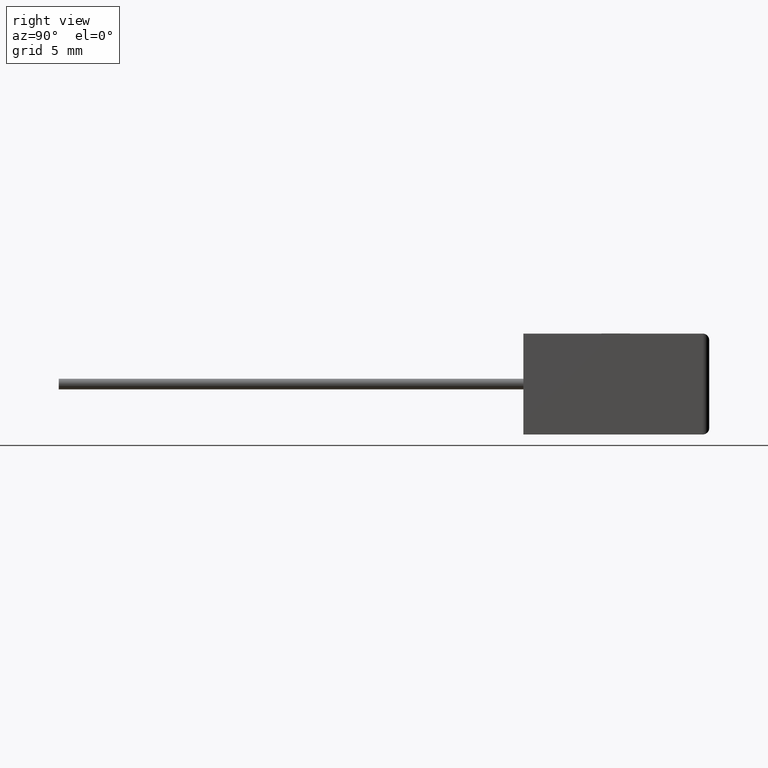
[diagram: clean part render]
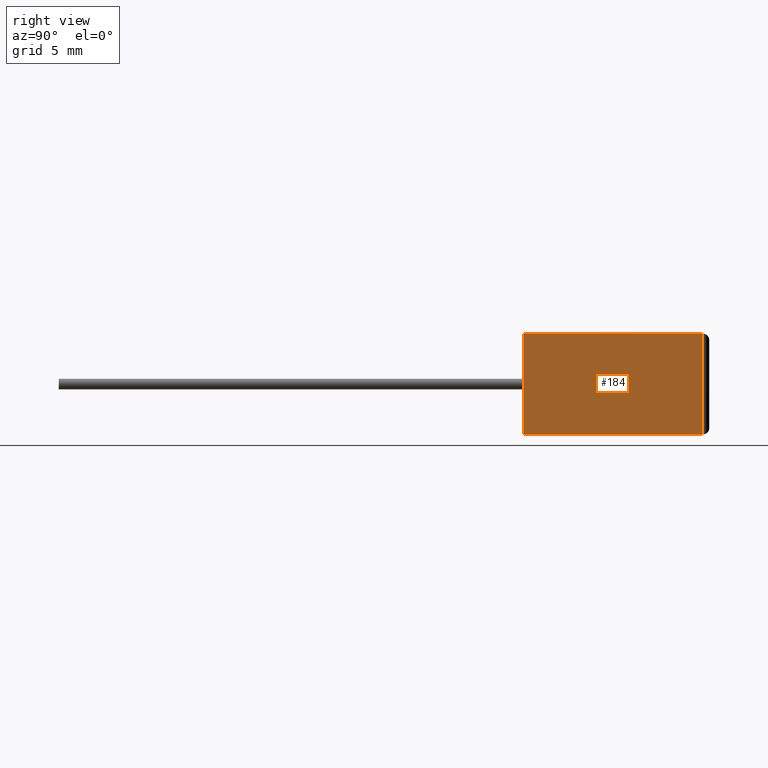
[diagram: same view with one face highlighted and labeled with its STEP entity id]
A machine part, right view. The second image highlights one B-rep face of the part: STEP entity #184.
In plain terms, the highlighted planar face has unit normal (-1, 0, 0).
Its self-contained STEP definition (entity closure, byte-faithful):
#25 = DIRECTION ( 'NONE',  ( 0.0000000000000000000, 1.000000000000000000, 0.0000000000000000000 ) ) ;
#132 = DIRECTION ( 'NONE',  ( -1.000000000000000000, 0.0000000000000000000, 0.0000000000000000000 ) ) ;
#136 = VECTOR ( 'NONE', #682, 1000.000000000000000 ) ;
#184 = ADVANCED_FACE ( 'NONE', ( #2203 ), #296, .F. ) ;
#270 = LINE ( 'NONE', #2247, #1036 ) ;
#296 = PLANE ( 'NONE',  #2036 ) ;
#303 = VECTOR ( 'NONE', #1196, 1000.000000000000000 ) ;
#374 = DIRECTION ( 'NONE',  ( -0.0000000000000000000, -0.0000000000000000000, 1.000000000000000000 ) ) ;
#527 = EDGE_CURVE ( 'NONE', #2394, #1500, #2144, .T. ) ;
#633 = EDGE_CURVE ( 'NONE', #2083, #2394, #1345, .T. ) ;
#682 = DIRECTION ( 'NONE',  ( -0.0000000000000000000, -0.0000000000000000000, -1.000000000000000000 ) ) ;
#704 = ORIENTED_EDGE ( 'NONE', *, *, #2119, .F. ) ;
#777 = CARTESIAN_POINT ( 'NONE',  ( 24.00000000000000000, 0.0000000000000000000, 0.0000000000000000000 ) ) ;
#1036 = VECTOR ( 'NONE', #374, 1000.000000000000000 ) ;
#1046 = CARTESIAN_POINT ( 'NONE',  ( 24.00000000000000000, 0.0000000000000000000, 7.599999999999999600 ) ) ;
#1138 = EDGE_LOOP ( 'NONE', ( #1360, #2341, #704, #1355 ) ) ;
#1163 = CARTESIAN_POINT ( 'NONE',  ( 24.00000000000000000, 0.0000000000000000000, 7.599999999999999600 ) ) ;
#1196 = DIRECTION ( 'NONE',  ( 0.0000000000000000000, 1.000000000000000000, 0.0000000000000000000 ) ) ;
#1345 = LINE ( 'NONE', #1046, #136 ) ;
#1355 = ORIENTED_EDGE ( 'NONE', *, *, #633, .T. ) ;
#1360 = ORIENTED_EDGE ( 'NONE', *, *, #527, .T. ) ;
#1430 = CARTESIAN_POINT ( 'NONE',  ( 24.00000000000000000, 13.50000000000000000, 7.599999999999999600 ) ) ;
#1500 = VERTEX_POINT ( 'NONE', #2251 ) ;
#1656 = VECTOR ( 'NONE', #25, 1000.000000000000000 ) ;
#1691 = DIRECTION ( 'NONE',  ( 0.0000000000000000000, 0.0000000000000000000, 1.000000000000000000 ) ) ;
#1913 = VERTEX_POINT ( 'NONE', #1430 ) ;
#2036 = AXIS2_PLACEMENT_3D ( 'NONE', #2228, #132, #1691 ) ;
#2083 = VERTEX_POINT ( 'NONE', #2344 ) ;
#2119 = EDGE_CURVE ( 'NONE', #2083, #1913, #2339, .T. ) ;
#2144 = LINE ( 'NONE', #2170, #1656 ) ;
#2170 = CARTESIAN_POINT ( 'NONE',  ( 24.00000000000000000, 0.0000000000000000000, 0.0000000000000000000 ) ) ;
#2203 = FACE_OUTER_BOUND ( 'NONE', #1138, .T. ) ;
#2228 = CARTESIAN_POINT ( 'NONE',  ( 24.00000000000000000, 0.0000000000000000000, 7.599999999999999600 ) ) ;
#2247 = CARTESIAN_POINT ( 'NONE',  ( 24.00000000000000000, 13.50000000000000000, 7.599999999999999600 ) ) ;
#2251 = CARTESIAN_POINT ( 'NONE',  ( 24.00000000000000000, 13.50000000000000000, 0.0000000000000000000 ) ) ;
#2261 = EDGE_CURVE ( 'NONE', #1500, #1913, #270, .T. ) ;
#2339 = LINE ( 'NONE', #1163, #303 ) ;
#2341 = ORIENTED_EDGE ( 'NONE', *, *, #2261, .T. ) ;
#2344 = CARTESIAN_POINT ( 'NONE',  ( 24.00000000000000000, 0.0000000000000000000, 7.599999999999999600 ) ) ;
#2394 = VERTEX_POINT ( 'NONE', #777 ) ;